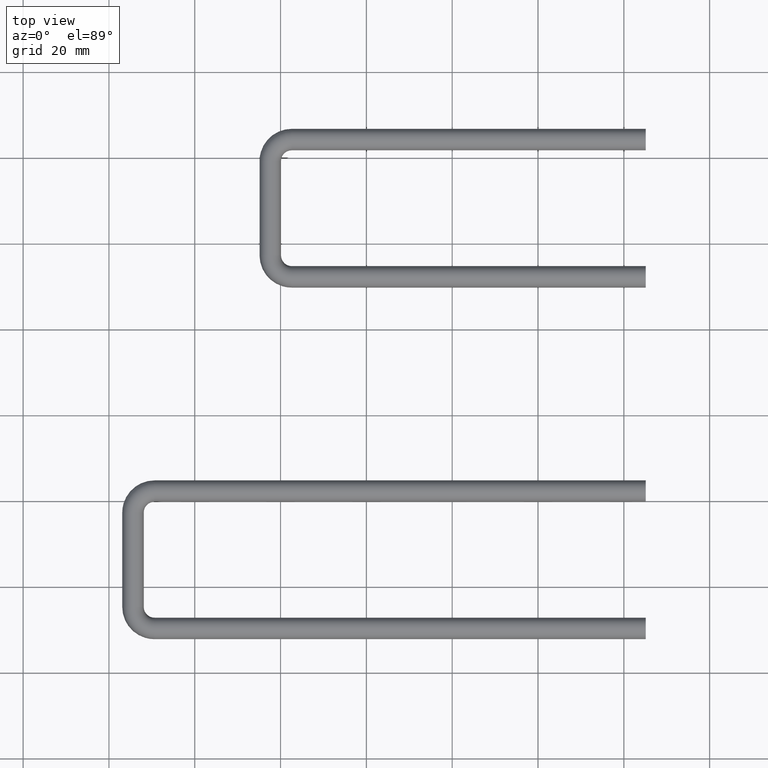
[diagram: clean part render]
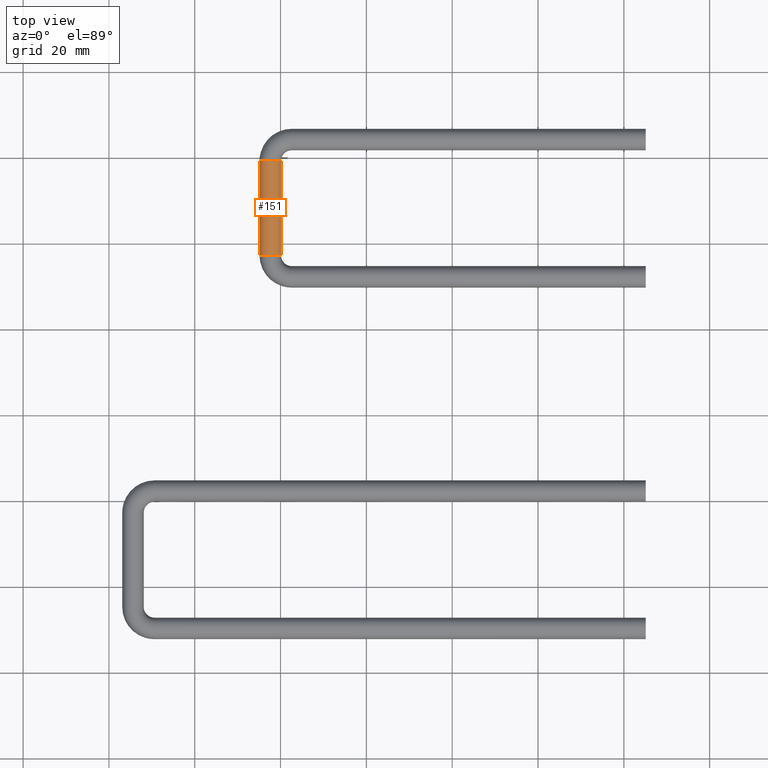
[diagram: same view with one face highlighted and labeled with its STEP entity id]
A machine part, top view. The second image highlights one B-rep face of the part: STEP entity #151.
In plain terms, the highlighted cylindrical surface (bore or boss wall) has radius 2.5 mm, axis along (-0, -1, -0).
Its self-contained STEP definition (entity closure, byte-faithful):
#37=FACE_BOUND('',#64,.T.);
#47=FACE_OUTER_BOUND('',#63,.T.);
#63=EDGE_LOOP('',(#123));
#64=EDGE_LOOP('',(#124));
#85=CIRCLE('',#170,2.5);
#86=CIRCLE('',#172,2.5);
#97=VERTEX_POINT('',#265);
#98=VERTEX_POINT('',#268);
#109=EDGE_CURVE('',#97,#97,#85,.T.);
#110=EDGE_CURVE('',#98,#98,#86,.T.);
#123=ORIENTED_EDGE('',*,*,#109,.F.);
#124=ORIENTED_EDGE('',*,*,#110,.T.);
#144=CYLINDRICAL_SURFACE('',#171,2.5);
#151=ADVANCED_FACE('',(#47,#37),#144,.T.);
#170=AXIS2_PLACEMENT_3D('',#266,#206,#207);
#171=AXIS2_PLACEMENT_3D('',#267,#208,#209);
#172=AXIS2_PLACEMENT_3D('',#269,#210,#211);
#206=DIRECTION('center_axis',(-1.15061335090709E-16,-1.,0.));
#207=DIRECTION('ref_axis',(1.,-1.15061335090709E-16,0.));
#208=DIRECTION('center_axis',(0.,-1.,0.));
#209=DIRECTION('ref_axis',(1.,0.,0.));
#210=DIRECTION('center_axis',(-1.15061335090709E-16,-1.,0.));
#211=DIRECTION('ref_axis',(1.,-1.15061335090709E-16,0.));
#265=CARTESIAN_POINT('',(-46.25,-11.,3.06161699786838E-16));
#266=CARTESIAN_POINT('Origin',(-43.75,-11.,0.));
#267=CARTESIAN_POINT('Origin',(-43.75,11.,0.));
#268=CARTESIAN_POINT('',(-46.25,11.,3.06161699786838E-16));
#269=CARTESIAN_POINT('Origin',(-43.75,11.,0.));